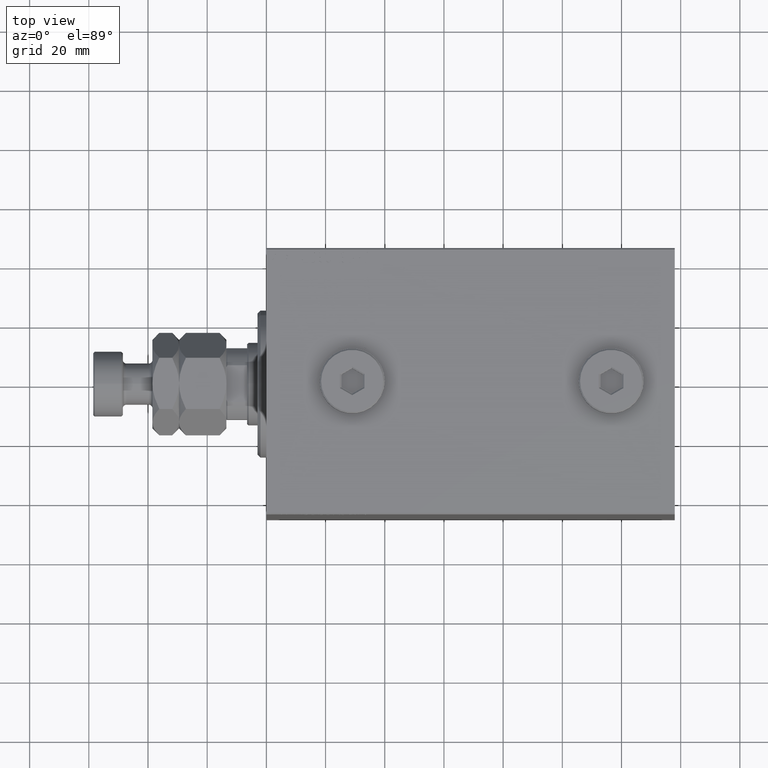
[diagram: clean part render]
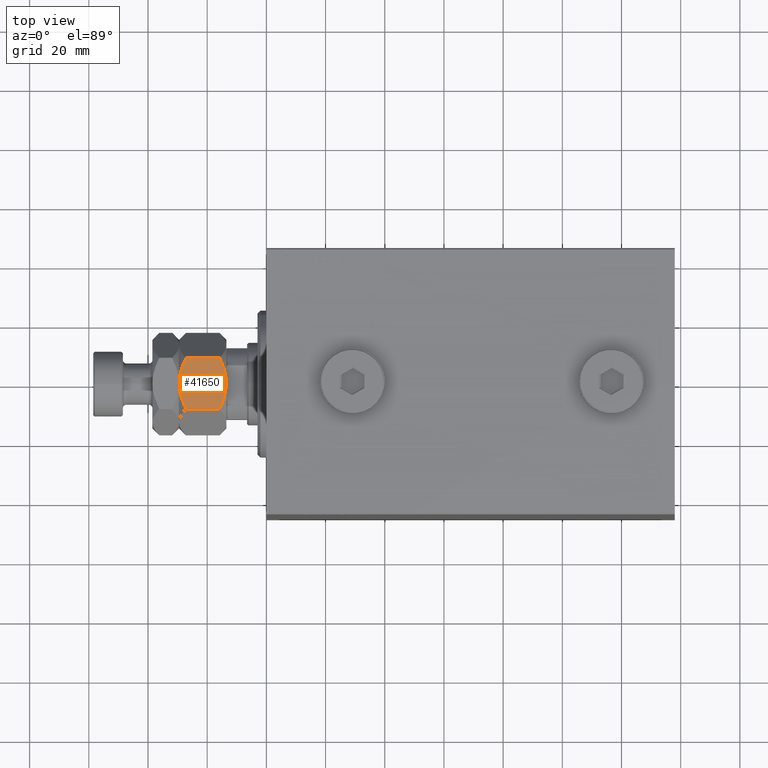
[diagram: same view with one face highlighted and labeled with its STEP entity id]
A machine part, top view. The second image highlights one B-rep face of the part: STEP entity #41650.
In plain terms, the highlighted planar face has unit normal (0, 0, -1).
Its self-contained STEP definition (entity closure, byte-faithful):
#227 = ORIENTED_EDGE ( 'NONE', *, *, #8955, .F. ) ;
#689 = LINE ( 'NONE', #15662, #24506 ) ;
#773 = CARTESIAN_POINT ( 'NONE',  ( 15.00000000000000000, 5.176035048062463950, 0.8528038385778482500 ) ) ;
#1317 = EDGE_CURVE ( 'NONE', #15065, #42835, #32427, .T. ) ;
#1689 = CARTESIAN_POINT ( 'NONE',  ( 15.00000000000000000, 1.516896874073655477, 15.92818277676011007 ) ) ;
#3796 = B_SPLINE_CURVE_WITH_KNOTS ( 'NONE', 3,
 ( #30203, #9526, #15737, #1689, #9292, #45176, #4800, #8830, #34476, #23559, #20230, #27110 ),
 .UNSPECIFIED., .F., .F.,
 ( 4, 2, 2, 2, 2, 4 ),
 ( 0.03291042869972460316, 0.03403908204310901464, 0.03516773538649342612, 0.03742504207326225601, 0.03968234876003107897, 0.04193965544679990887 ),
 .UNSPECIFIED. ) ;
#4369 = CARTESIAN_POINT ( 'NONE',  ( 15.00000000000000000, -8.660254037844389075, 16.00000000000000000 ) ) ;
#4636 = CARTESIAN_POINT ( 'NONE',  ( 15.00000000000000178, -0.3816858437404750393, -1.673737103774498062E-15 ) ) ;
#4800 = CARTESIAN_POINT ( 'NONE',  ( 15.00000000000000000, 3.735400403320773055, 15.55737490054933403 ) ) ;
#4960 = CARTESIAN_POINT ( 'NONE',  ( 15.00000000000000533, -1.527574731641585526, 16.00000000000001066 ) ) ;
#5049 = VERTEX_POINT ( 'NONE', #43257 ) ;
#5721 = ORIENTED_EDGE ( 'NONE', *, *, #18933, .T. ) ;
#6193 = B_SPLINE_CURVE_WITH_KNOTS ( 'NONE', 3,
 ( #37123, #32623, #18609, #40218, #773, #8143, #28804, #15277 ),
 .UNSPECIFIED., .F., .F.,
 ( 4, 2, 2, 4 ),
 ( 0.02387628527307377596, 0.02613482112973648797, 0.02839335698639919650, 0.03291042869972461704 ),
 .UNSPECIFIED. ) ;
#6597 = EDGE_CURVE ( 'NONE', #10327, #6821, #689, .T. ) ;
#6615 = CARTESIAN_POINT ( 'NONE',  ( 15.00000000000000000, 0.000000000000000000, 0.000000000000000000 ) ) ;
#6821 = VERTEX_POINT ( 'NONE', #36978 ) ;
#8143 = CARTESIAN_POINT ( 'NONE',  ( 15.00000000000000000, 3.008020699068711501, 0.2357602839062953870 ) ) ;
#8670 = CARTESIAN_POINT ( 'NONE',  ( 15.00000000000000178, -7.987879721624093321, 1.984320917578617616 ) ) ;
#8830 = CARTESIAN_POINT ( 'NONE',  ( 15.00000000000000000, 5.178726290334375371, 15.14627300035555990 ) ) ;
#8955 = EDGE_CURVE ( 'NONE', #38325, #5049, #28852, .T. ) ;
#9292 = CARTESIAN_POINT ( 'NONE',  ( 15.00000000000000000, 1.890862710942010638, 15.88574619416683831 ) ) ;
#9526 = CARTESIAN_POINT ( 'NONE',  ( 15.00000000000000178, 0.3816858437404682114, 16.00000000000001066 ) ) ;
#10327 = VERTEX_POINT ( 'NONE', #23305 ) ;
#10646 = CARTESIAN_POINT ( 'NONE',  ( 15.00000000000000000, -8.660254037844389075, 13.67949192431123961 ) ) ;
#11962 = DIRECTION ( 'NONE',  ( 0.000000000000000000, 0.000000000000000000, 1.000000000000000000 ) ) ;
#12786 = CARTESIAN_POINT ( 'NONE',  ( 15.00000000000000000, -7.301344312447432650, 14.32986304731390881 ) ) ;
#15065 = VERTEX_POINT ( 'NONE', #10646 ) ;
#15188 = DIRECTION ( 'NONE',  ( -0.000000000000000000, -0.000000000000000000, -1.000000000000000000 ) ) ;
#15277 = CARTESIAN_POINT ( 'NONE',  ( 15.00000000000000000, 0.000000000000000000, 0.000000000000000000 ) ) ;
#15574 = CARTESIAN_POINT ( 'NONE',  ( 15.00000000000000533, -7.300329060372333423, 1.669694153640836065 ) ) ;
#15662 = CARTESIAN_POINT ( 'NONE',  ( 15.00000000000000000, 8.660254037844389075, 16.00000000000000000 ) ) ;
#15670 = CARTESIAN_POINT ( 'NONE',  ( 15.00000000000000533, -3.008020699068709725, 15.76423971609371222 ) ) ;
#15737 = CARTESIAN_POINT ( 'NONE',  ( 15.00000000000000355, 0.7629267201675408172, 15.98531533915807934 ) ) ;
#15774 = PLANE ( 'NONE',  #36534 ) ;
#16035 = CARTESIAN_POINT ( 'NONE',  ( 14.99999999999999822, -3.735400403320778384, 0.4426250994506710779 ) ) ;
#18609 = CARTESIAN_POINT ( 'NONE',  ( 15.00000000000000178, 7.301344312447433538, 1.670136952686098741 ) ) ;
#18933 = EDGE_CURVE ( 'NONE', #15065, #5049, #45733, .T. ) ;
#19345 = FACE_OUTER_BOUND ( 'NONE', #46032, .T. ) ;
#19377 = CARTESIAN_POINT ( 'NONE',  ( 15.00000000000000178, -3.004330627448764002, 0.2802888644511988825 ) ) ;
#19472 = CARTESIAN_POINT ( 'NONE',  ( 14.99999999999999645, 0.000000000000000000, 16.00000000000000000 ) ) ;
#19492 = EDGE_CURVE ( 'NONE', #42835, #10327, #3796, .T. ) ;
#19605 = CARTESIAN_POINT ( 'NONE',  ( 15.00000000000000000, 0.000000000000000000, 0.000000000000000000 ) ) ;
#20230 = CARTESIAN_POINT ( 'NONE',  ( 15.00000000000000533, 7.987879721624093321, 14.01567908242138927 ) ) ;
#20551 = CARTESIAN_POINT ( 'NONE',  ( 15.00000000000000000, -8.660254037844389075, 16.00000000000000000 ) ) ;
#23305 = CARTESIAN_POINT ( 'NONE',  ( 15.00000000000000000, 8.660254037844389075, 13.67949192431123784 ) ) ;
#23559 = CARTESIAN_POINT ( 'NONE',  ( 14.99999999999999645, 7.300329060372325429, 14.33030584635916860 ) ) ;
#24506 = VECTOR ( 'NONE', #15188, 1000.000000000000000 ) ;
#24653 = ORIENTED_EDGE ( 'NONE', *, *, #6597, .F. ) ;
#26251 = VECTOR ( 'NONE', #45967, 1000.000000000000000 ) ;
#26490 = CARTESIAN_POINT ( 'NONE',  ( 14.99999999999999822, -5.178726290334377147, 0.8537269996444445397 ) ) ;
#26918 = DIRECTION ( 'NONE',  ( -1.000000000000000000, 0.000000000000000000, 0.000000000000000000 ) ) ;
#27044 = CARTESIAN_POINT ( 'NONE',  ( 15.00000000000000178, -7.987590979791838741, 14.01582345333751967 ) ) ;
#27110 = CARTESIAN_POINT ( 'NONE',  ( 15.00000000000000000, 8.660254037844389075, 13.67949192431123784 ) ) ;
#28381 = EDGE_CURVE ( 'NONE', #6821, #38325, #6193, .T. ) ;
#28804 = CARTESIAN_POINT ( 'NONE',  ( 15.00000000000000178, 1.527574731641579753, -2.310705880109730931E-15 ) ) ;
#28852 = B_SPLINE_CURVE_WITH_KNOTS ( 'NONE', 3,
 ( #19605, #4636, #40753, #37870, #41224, #19377, #16035, #26490, #33391, #15574, #8670, #37411 ),
 .UNSPECIFIED., .F., .F.,
 ( 4, 2, 2, 2, 2, 4 ),
 ( 0.03291042869972461704, 0.03403908204310902852, 0.03516773538649344694, 0.03742504207326226989, 0.03968234876003109979, 0.04193965544679992274 ),
 .UNSPECIFIED. ) ;
#30137 = CARTESIAN_POINT ( 'NONE',  ( 15.00000000000000355, -5.176035048062459509, 15.14719616142216196 ) ) ;
#30203 = CARTESIAN_POINT ( 'NONE',  ( 14.99999999999999645, 0.000000000000000000, 16.00000000000000000 ) ) ;
#32427 = B_SPLINE_CURVE_WITH_KNOTS ( 'NONE', 3,
 ( #34635, #27044, #12786, #33723, #30137, #15670, #4960, #19472 ),
 .UNSPECIFIED., .F., .F.,
 ( 4, 2, 2, 4 ),
 ( 0.02387628527307377943, 0.02613482112973648450, 0.02839335698639919303, 0.03291042869972460316 ),
 .UNSPECIFIED. ) ;
#32623 = CARTESIAN_POINT ( 'NONE',  ( 15.00000000000000000, 7.987590979791842294, 1.984176546662486773 ) ) ;
#32638 = ORIENTED_EDGE ( 'NONE', *, *, #28381, .F. ) ;
#33391 = CARTESIAN_POINT ( 'NONE',  ( 15.00000000000000000, -5.890999289811427175, 1.102415080315421125 ) ) ;
#33723 = CARTESIAN_POINT ( 'NONE',  ( 15.00000000000000178, -5.891877557735398341, 14.89726549906047737 ) ) ;
#34476 = CARTESIAN_POINT ( 'NONE',  ( 15.00000000000000178, 5.890999289811421846, 14.89758491968458465 ) ) ;
#34635 = CARTESIAN_POINT ( 'NONE',  ( 15.00000000000000000, -8.660254037844389075, 13.67949192431123961 ) ) ;
#36534 = AXIS2_PLACEMENT_3D ( 'NONE', #4369, #26918, #11962 ) ;
#36764 = ORIENTED_EDGE ( 'NONE', *, *, #19492, .F. ) ;
#36978 = CARTESIAN_POINT ( 'NONE',  ( 15.00000000000000000, 8.660254037844389075, 2.320508075688765715 ) ) ;
#37123 = CARTESIAN_POINT ( 'NONE',  ( 15.00000000000000000, 8.660254037844389075, 2.320508075688765715 ) ) ;
#37411 = CARTESIAN_POINT ( 'NONE',  ( 15.00000000000000000, -8.660254037844389075, 2.320508075688767047 ) ) ;
#37870 = CARTESIAN_POINT ( 'NONE',  ( 15.00000000000000178, -1.516896874073660584, 0.07181722323989220280 ) ) ;
#38262 = CARTESIAN_POINT ( 'NONE',  ( 14.99999999999999645, 0.000000000000000000, 16.00000000000000000 ) ) ;
#38325 = VERTEX_POINT ( 'NONE', #6615 ) ;
#40218 = CARTESIAN_POINT ( 'NONE',  ( 14.99999999999999822, 5.891877557735396564, 1.102734500939527296 ) ) ;
#40753 = CARTESIAN_POINT ( 'NONE',  ( 15.00000000000000000, -0.7629267201675461463, 0.01468466084192619932 ) ) ;
#40840 = ORIENTED_EDGE ( 'NONE', *, *, #1317, .F. ) ;
#41224 = CARTESIAN_POINT ( 'NONE',  ( 15.00000000000000178, -1.890862710942016411, 0.1142538058331598050 ) ) ;
#41650 = ADVANCED_FACE ( 'NONE', ( #19345 ), #15774, .F. ) ;
#42835 = VERTEX_POINT ( 'NONE', #38262 ) ;
#43257 = CARTESIAN_POINT ( 'NONE',  ( 15.00000000000000000, -8.660254037844389075, 2.320508075688767047 ) ) ;
#45176 = CARTESIAN_POINT ( 'NONE',  ( 15.00000000000000000, 3.004330627448758673, 15.71971113554880972 ) ) ;
#45733 = LINE ( 'NONE', #20551, #26251 ) ;
#45967 = DIRECTION ( 'NONE',  ( -0.000000000000000000, -0.000000000000000000, -1.000000000000000000 ) ) ;
#46032 = EDGE_LOOP ( 'NONE', ( #32638, #24653, #36764, #40840, #5721, #227 ) ) ;